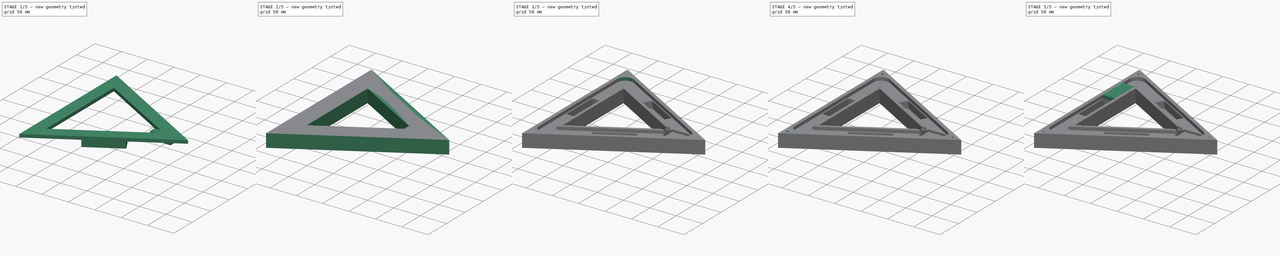
[diagram: build sequence overview — one tinted view per stage of 5, left to right]
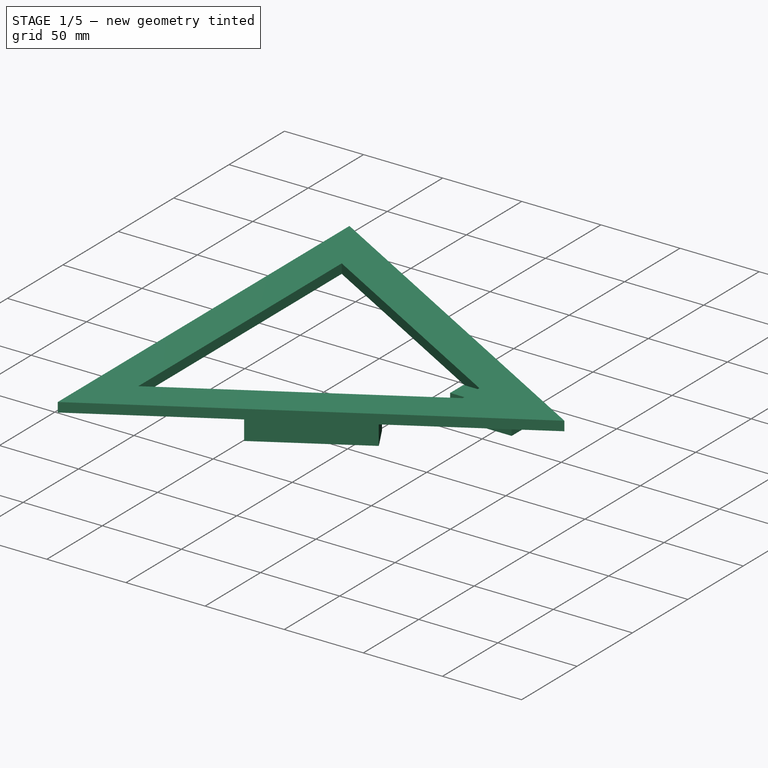
[diagram: stage 1 of 5 — iso view after this stage's code; geometry added in this stage tinted green]
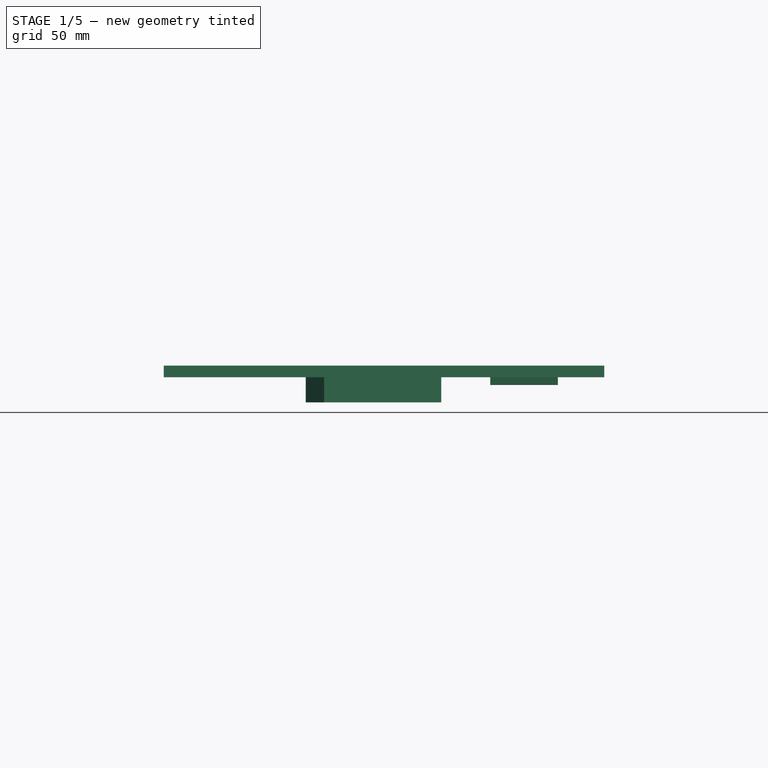
[diagram: stage 1 of 5 — front view after this stage's code; geometry added in this stage tinted green]
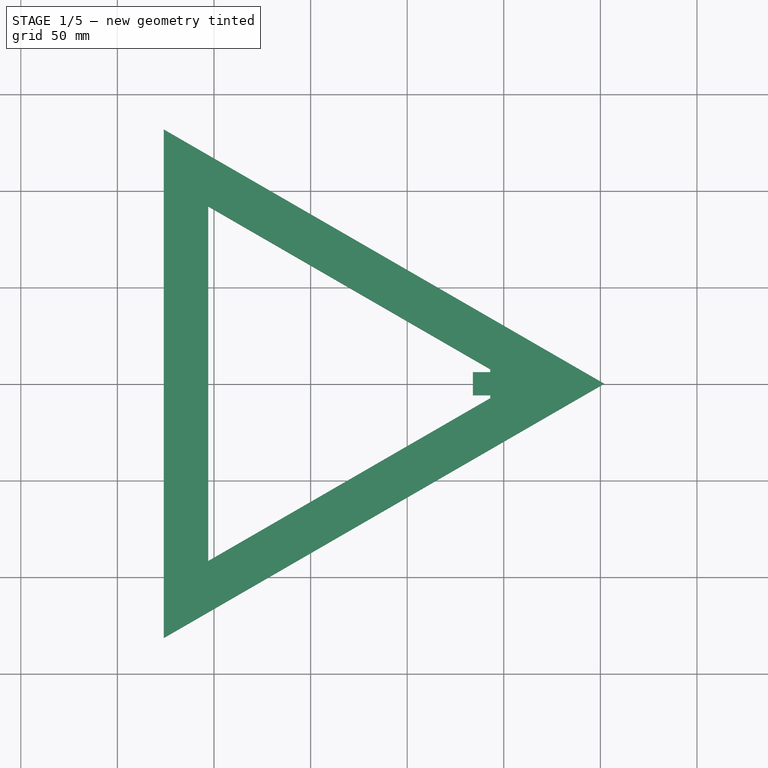
[diagram: stage 1 of 5 — top view after this stage's code; geometry added in this stage tinted green]
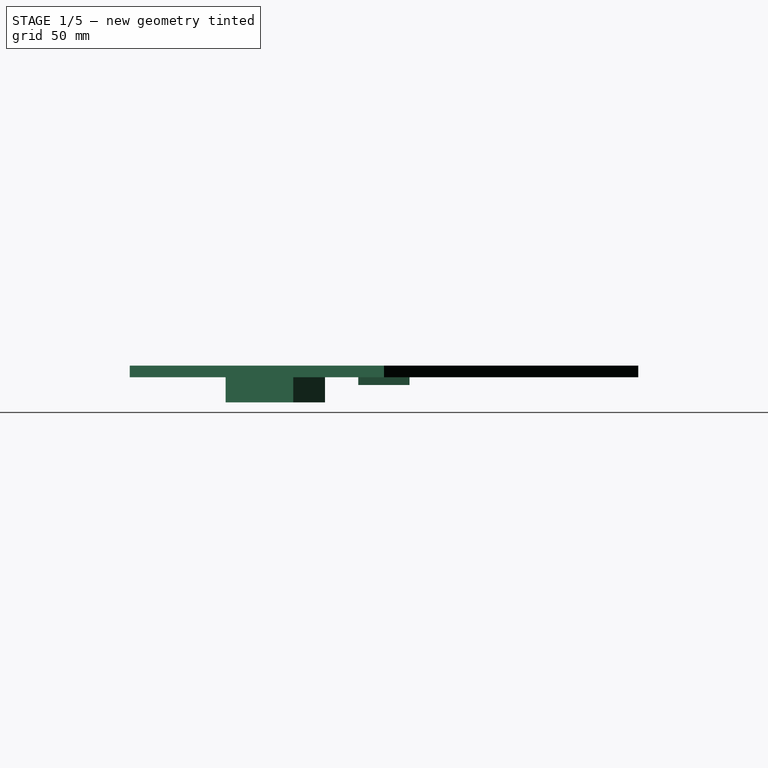
[diagram: stage 1 of 5 — right view after this stage's code; geometry added in this stage tinted green]
FCSTD DOCUMENT  (FreeCAD 0.17R13541 (Git))
Label: TechNicolor-Triangle-39-battery-D1-Mini-USB-BMS-Big-Filleted-Channel-And-USB-alt-Solid-Back-through-filleted-inner-corners-LED-Groove-Inside-Outside-Fit-Holes
License: All rights reserved
LicenseURL: http://en.wikipedia.org/wiki/All_rights_reserved
objects: Part::Cut×8, Part::Box×6, Sketcher::SketchObject×6, PartDesign::Pocket×5, PartDesign::PolarPattern×5, Part::Prism×4, Part::Fillet×1, PartDesign::FeatureBase×1, PartDesign::Body×1, App::Part×1
note: 42 computed .brp shape members not serialized (recipe doc carries the construction recipe); baked Part::Feature solids carry a one-line shape summary decoded from their .brp

FEATURE [Part::Box] Box002
  AttacherType = Attacher::AttachEngine3D
  Height = 19
  Length = 70
  Placement = pos=(7,-82,0) rot=(0,0,1;0.523599rad)
  Width = 19
FEATURE [Part::Box] Box003
  AttacherType = Attacher::AttachEngine3D
  Height = 10
  Length = 35
  Placement = pos=(93,-13.3,9) rot=(0,0,1;0rad)
  Width = 26.5
FEATURE [Part::Box] Box004
  AttacherType = Attacher::AttachEngine3D
  Height = 4
  Length = 10
  Placement = pos=(84,-6,15) rot=(0,0,1;0rad)
  Width = 12
FEATURE [Part::Prism] Prism002
  AttacherType = Attacher::AttachEngine3D
  Circumradius = 152
  Height = 6
  Placement = pos=(0,0,13) rot=(0,0,1;0rad)
  Polygon = 3
FEATURE [Part::Prism] Prism003
  AttacherType = Attacher::AttachEngine3D
  Circumradius = 106
  Height = 6
  Placement = pos=(0,0,13) rot=(0,0,1;0rad)
  Polygon = 3
FEATURE [Part::Cut] Cut006
  Base = -> Prism002
  Tool = -> Prism003
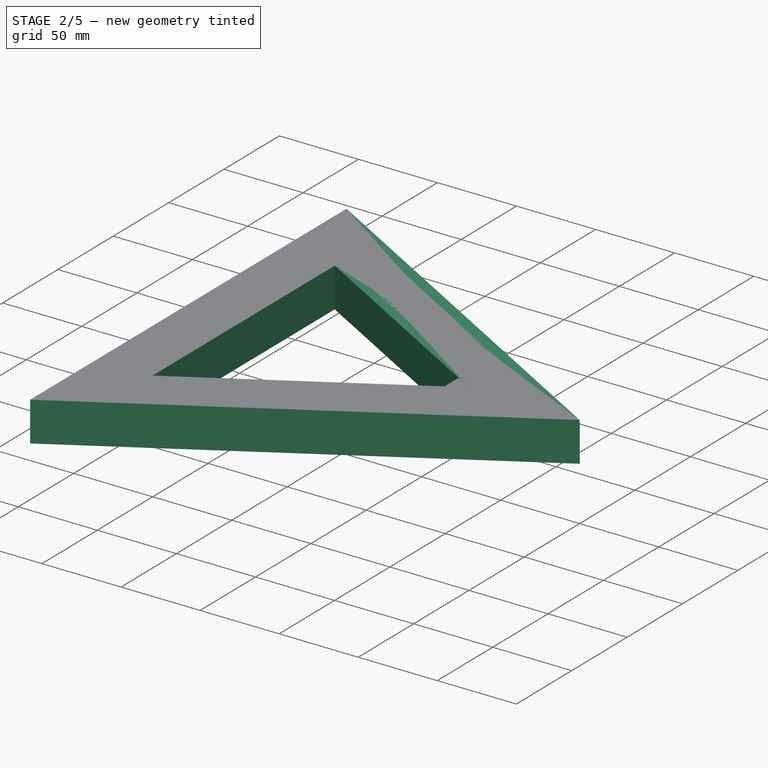
[diagram: stage 2 of 5 — iso view after this stage's code; geometry added in this stage tinted green]
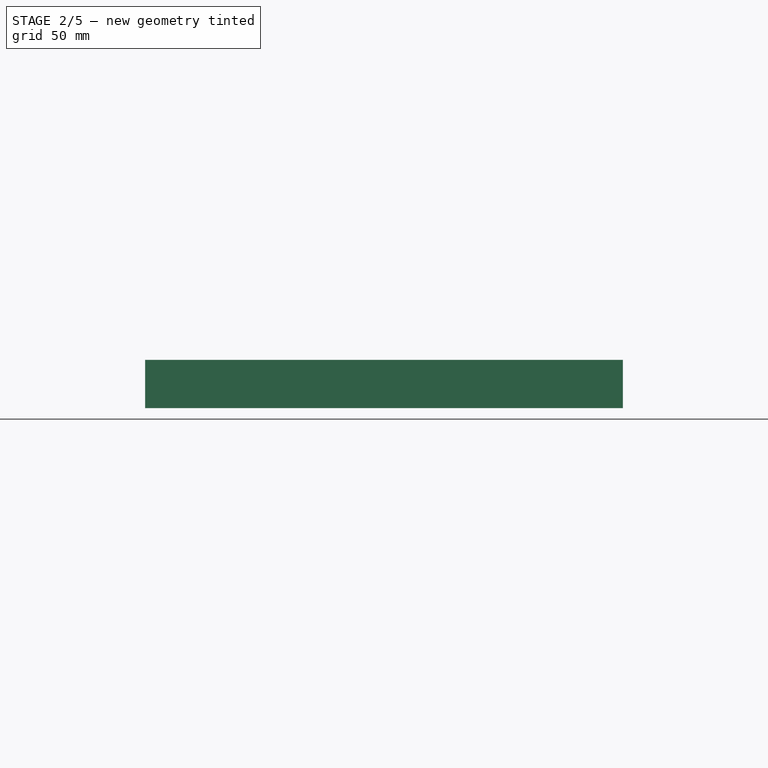
[diagram: stage 2 of 5 — front view after this stage's code; geometry added in this stage tinted green]
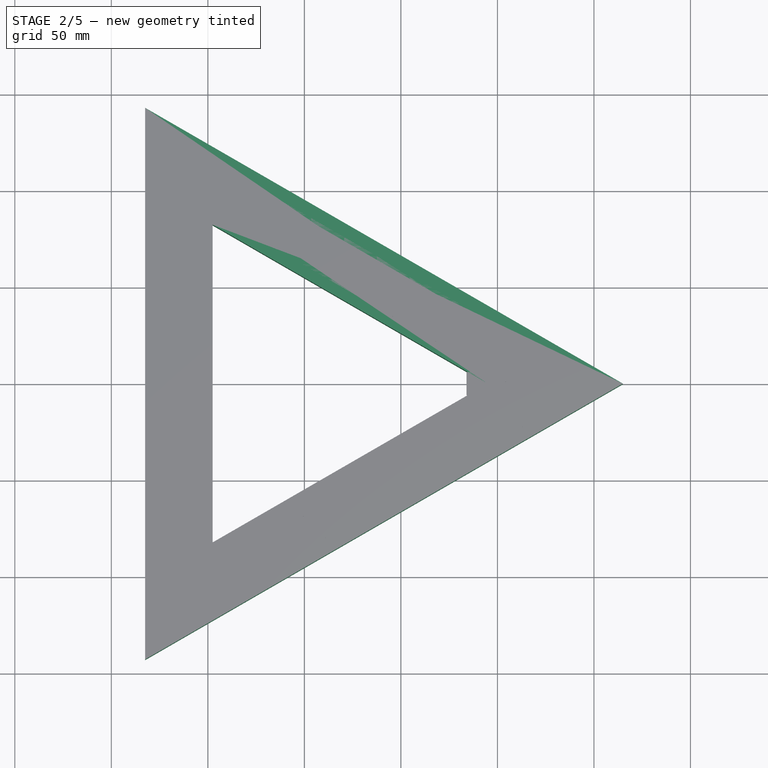
[diagram: stage 2 of 5 — top view after this stage's code; geometry added in this stage tinted green]
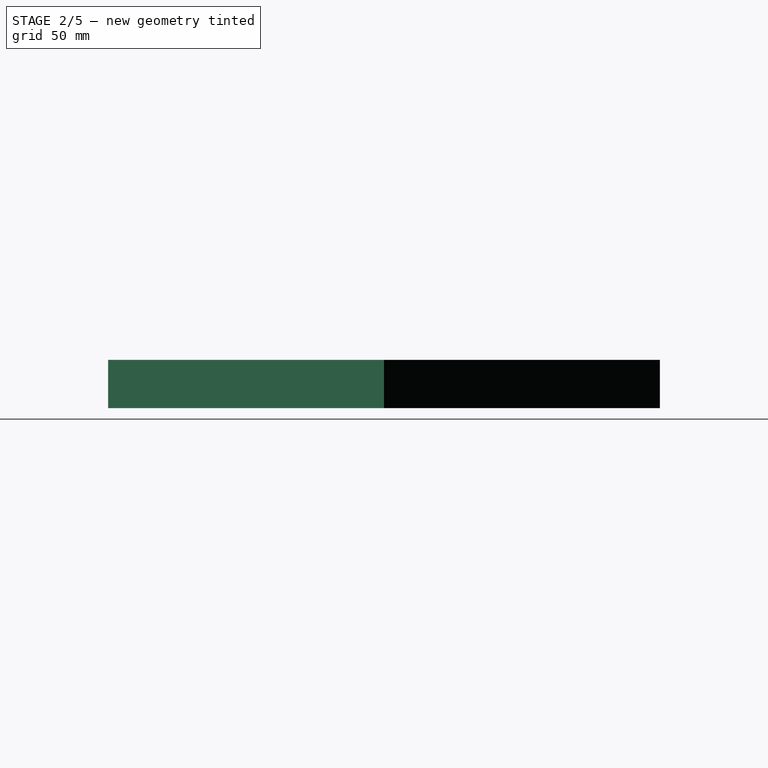
[diagram: stage 2 of 5 — right view after this stage's code; geometry added in this stage tinted green]
FEATURE [Part::Prism] Prism
  AttacherType = Attacher::AttachEngine3D
  Circumradius = 165
  Height = 25
  Placement = pos=(0,0,-6) rot=(0,0,1;0rad)
  Polygon = 3
FEATURE [Part::Prism] Prism001
  AttacherType = Attacher::AttachEngine3D
  Circumradius = 95
  Height = 25
  Placement = pos=(0,0,-6) rot=(0,0,1;0rad)
  Polygon = 3
FEATURE [Part::Cut] Cut
  Base = -> Prism
  Tool = -> Prism001
FEATURE [Part::Box] Box
  AttacherType = Attacher::AttachEngine3D
  Height = 19
  Length = 70
  Placement = pos=(-2,65,0) rot=(0,0,-1;0.523599rad)
  Width = 19
FEATURE [Part::Cut] Cut001
  Base = -> Cut
  Tool = -> Box
FEATURE [Part::Box] Box001
  AttacherType = Attacher::AttachEngine3D
  Height = 19
  Length = 70
  Placement = pos=(-55,-35,0) rot=(0,0,1;1.5708rad)
  Width = 19
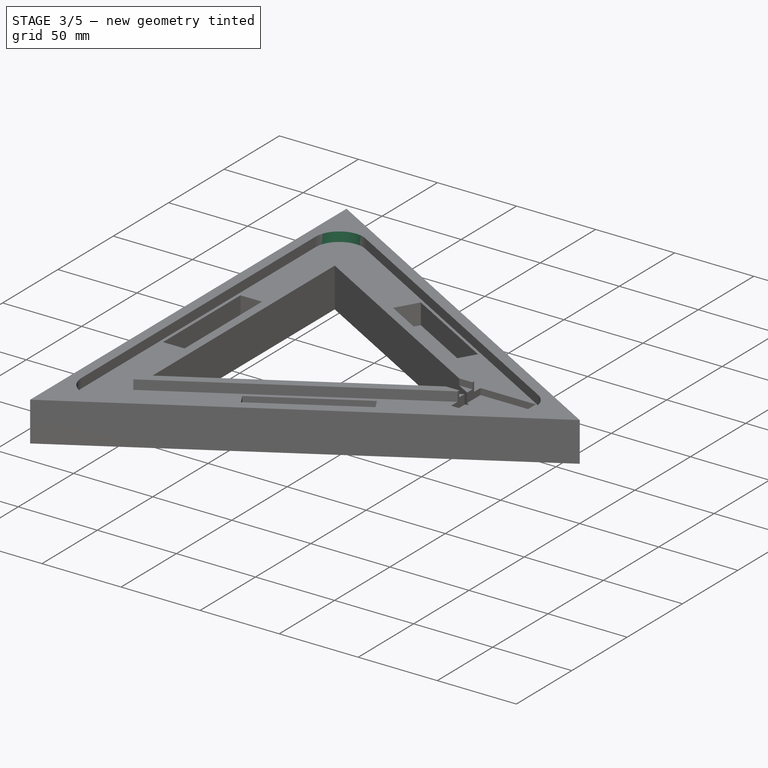
[diagram: stage 3 of 5 — iso view after this stage's code; geometry added in this stage tinted green]
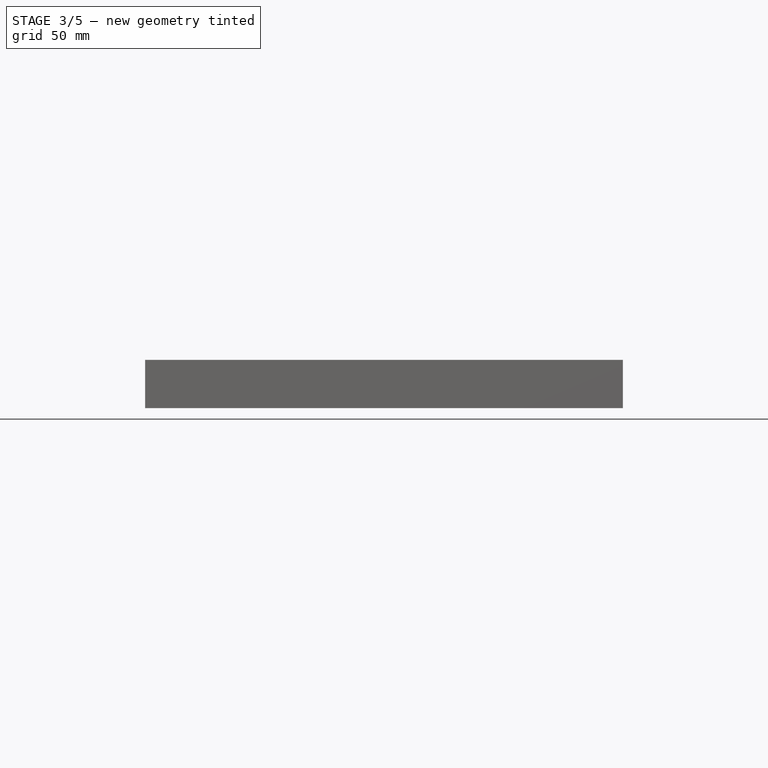
[diagram: stage 3 of 5 — front view after this stage's code; geometry added in this stage tinted green]
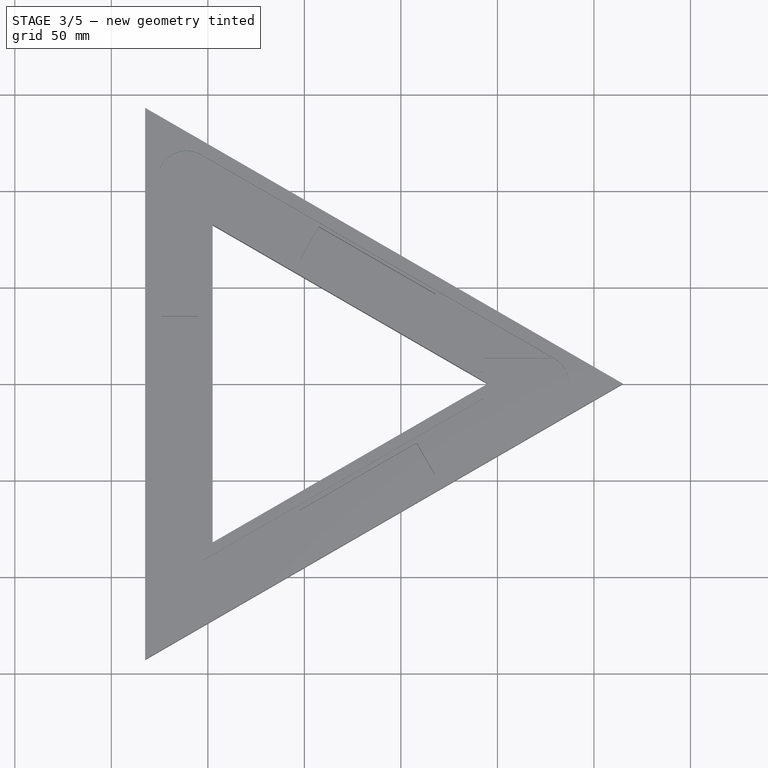
[diagram: stage 3 of 5 — top view after this stage's code; geometry added in this stage tinted green]
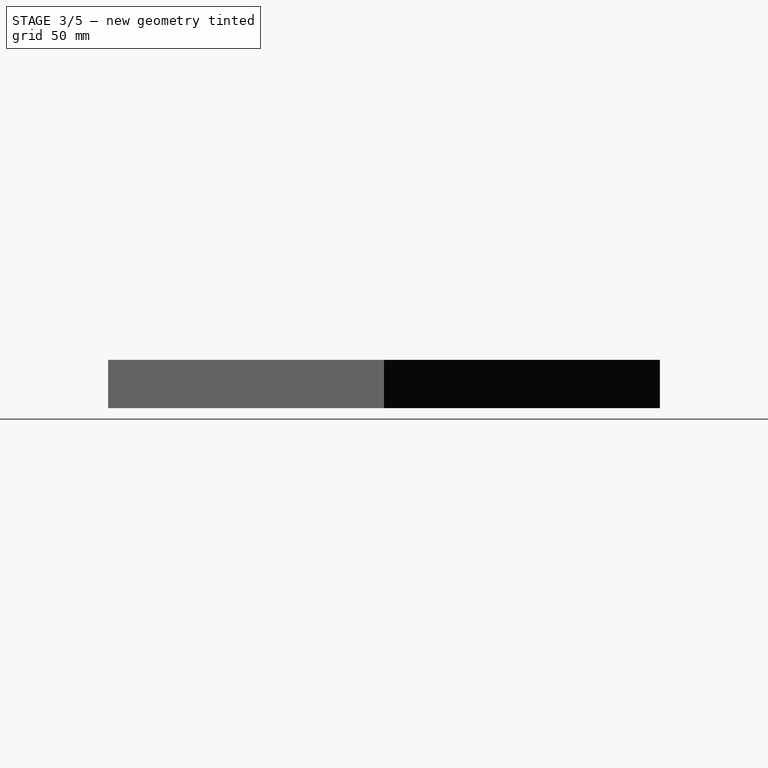
[diagram: stage 3 of 5 — right view after this stage's code; geometry added in this stage tinted green]
FEATURE [Part::Cut] Cut002
  Base = -> Cut001
  Tool = -> Box001
FEATURE [Part::Cut] Cut003
  Base = -> Cut002
  Tool = -> Box002
FEATURE [Part::Cut] Cut004
  Base = -> Cut003
  Tool = -> Box003
FEATURE [Part::Cut] Cut005
  Base = -> Cut004
  Tool = -> Box004
FEATURE [Part::Cut] Cut007
  Base = -> Cut005
  Tool = -> Cut006
FEATURE [Sketcher::SketchObject] Sketch
  MapMode = 5
  Placement = pos=(0,0,19) rot=(0,0,1;0rad)
  Support = -> [Cut]
  sketch-geometry (8):
    g0: LineSegment StartX=-74.7277 StartY=38.2242 StartZ=0 EndX=-55.7277 EndY=38.2242 EndZ=0
    g1: LineSegment StartX=-55.7277 StartY=38.2242 StartZ=0 EndX=-55.7277 EndY=-36.7758 EndZ=0
    g2: LineSegment StartX=-55.7277 StartY=-36.7758 StartZ=0 EndX=-74.7277 EndY=-36.7758 EndZ=0
    g3: LineSegment StartX=-74.7277 StartY=-36.7758 StartZ=0 EndX=-74.7277 EndY=38.2242 EndZ=0
    g4: LineSegment StartX=78.5324 StartY=-15.442 StartZ=0 EndX=3.53238 EndY=-58.1438 EndZ=0
    g5: LineSegment StartX=3.53238 StartY=-58.1438 StartZ=0 EndX=14.3502 EndY=-77.1438 EndZ=0
    g6: LineSegment StartX=14.3502 StartY=-77.1438 StartZ=0 EndX=89.3502 EndY=-34.442 EndZ=0
    g7: LineSegment StartX=89.3502 StartY=-34.442 StartZ=0 EndX=78.5324 EndY=-15.442 EndZ=0
  constraints (22):
    c: Coincident(g0,g1)
    c: Coincident(g1,g2)
    c: Coincident(g2,g3)
    c: Coincident(g3,g0)
    c: Horizontal(g0)
    c: Vertical(g1)
    c: Parallel(g1,g3)
    c: Parallel(g0,g2)
    c: Equal(g0,g2)
    c: Equal(g1,g3)
    c: DistanceY(g3) = 75
    c: DistanceX(g2) = -19
    c: Coincident(g4,g5)
    c: Coincident(g5,g6)
    c: Coincident(g6,g7)
    c: Coincident(g7,g4)
    c: DistanceX(g4) = -75
    c: DistanceX(g6) = 75
    c: DistanceY(g7) = 19
    c: DistanceY(g5) = -19
    c: Angle(g4,g7) = 1.5708
    c: Angle(g6,g5) = 1.5708
FEATURE [Part::Fillet] Fillet
  Base = -> Cut007
  Edges = 3 edges r=15: [Edge30,Edge31,Edge33]
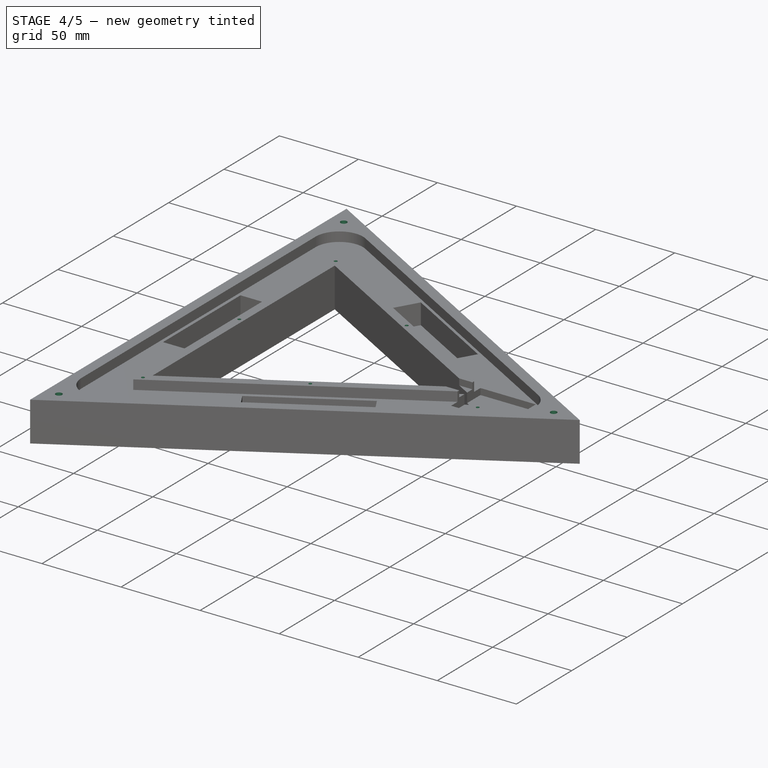
[diagram: stage 4 of 5 — iso view after this stage's code; geometry added in this stage tinted green]
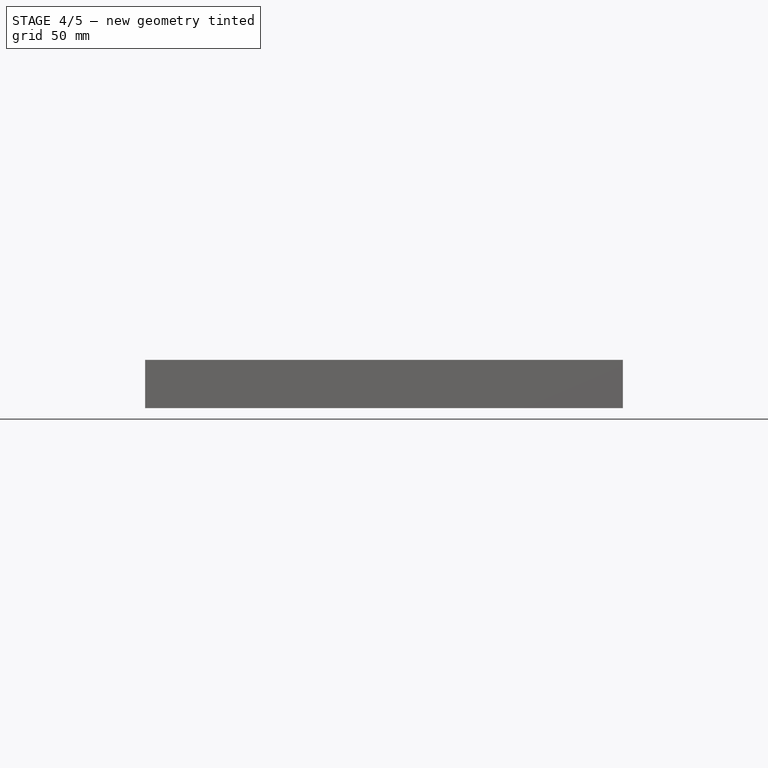
[diagram: stage 4 of 5 — front view after this stage's code; geometry added in this stage tinted green]
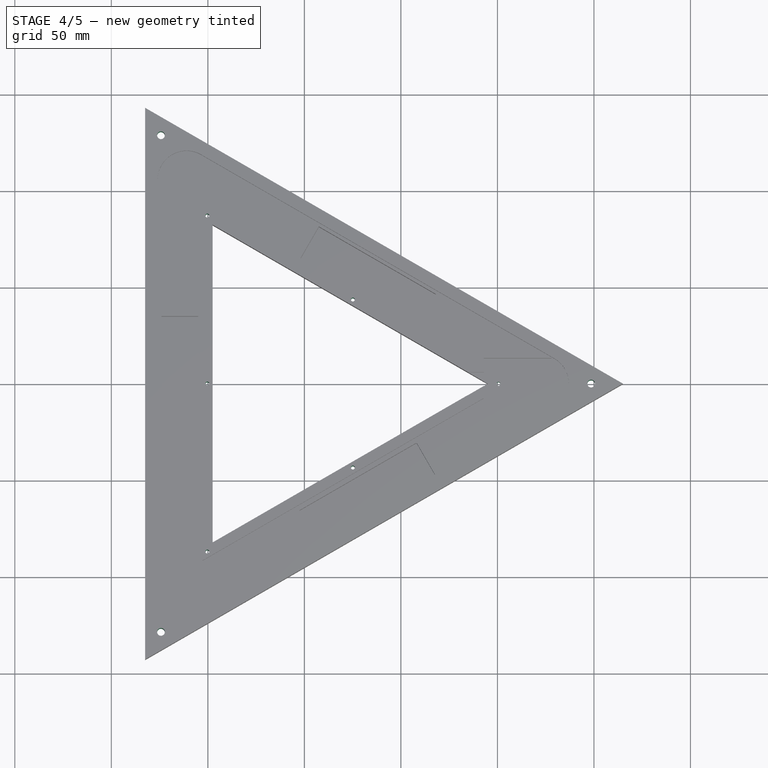
[diagram: stage 4 of 5 — top view after this stage's code; geometry added in this stage tinted green]
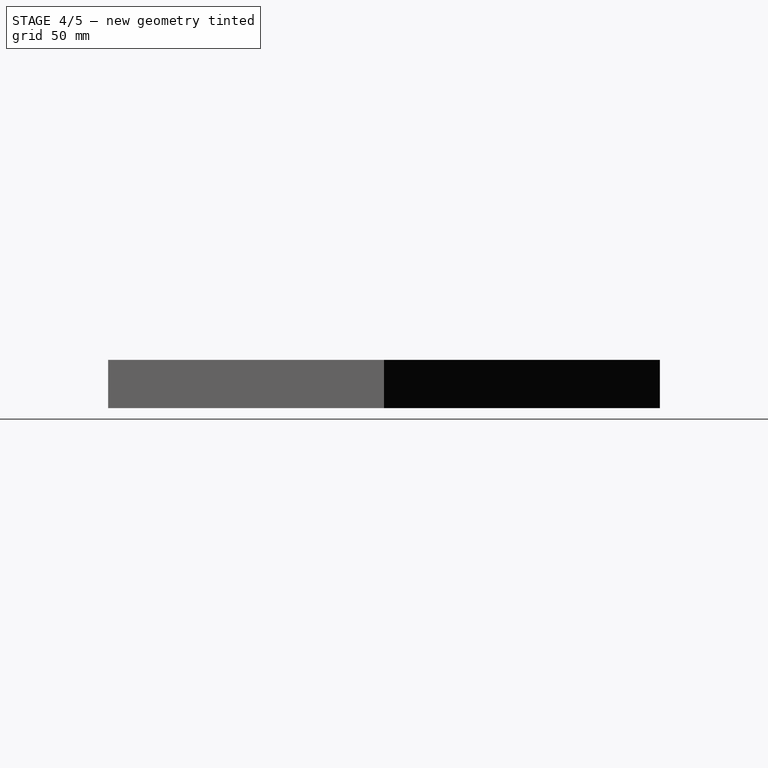
[diagram: stage 4 of 5 — right view after this stage's code; geometry added in this stage tinted green]
FEATURE [PartDesign::FeatureBase] BaseFeature
  BaseFeature = -> Fillet
FEATURE [Sketcher::SketchObject] Sketch001
  ExternalGeometry = -> [BaseFeature]
  MapMode = 5
  Placement = pos=(0,0,19) rot=(0,0,1;0rad)
  Support = -> [BaseFeature]
  sketch-geometry (2):
    g0: Circle CenterX=148.55 CenterY=0 CenterZ=0 NormalX=0 NormalY=0 NormalZ=1 AngleXU=0 Radius=2
    g1: GeomPoint X=141.355 Y=-0.209727 Z=0
  constraints (3):
    c: PointOnObject(g0,g-1)
    c: DistanceX(g0) = 148.55
    c: Radius(g0) = 2
FEATURE [PartDesign::Pocket] Pocket
  BaseFeature = -> BaseFeature
  Length = 5
  Length2 = 100
  Profile = -> Sketch001
  Type = 1
FEATURE [PartDesign::PolarPattern] PolarPattern
  Angle = 360
  Axis = -> Sketch001 [N_Axis]
  BaseFeature = -> Pocket
  Occurrences = 3
  Originals = -> [Pocket]
FEATURE [Sketcher::SketchObject] Sketch002  label="Inner-Set-Holes"
  ExternalGeometry = -> [PolarPattern]
  MapMode = 5
  Placement = pos=(0,0,19) rot=(0,0,1;0rad)
  Support = -> [PolarPattern]
  sketch-geometry (9):
    g0: Circle CenterX=-50.25 CenterY=0 CenterZ=0 NormalX=0 NormalY=0 NormalZ=1 AngleXU=0 Radius=1
    g1: GeomPoint X=-49.25 Y=0 Z=0
    g2: GeomPoint X=-47.5 Y=0 Z=0
    g3: GeomPoint X=-47.5 Y=0 Z=0
    g4: GeomPoint X=-47.5 Y=0 Z=0
    g5: GeomPoint X=-53 Y=0 Z=0
    g6: GeomPoint X=-53 Y=0 Z=0
    g7: Circle CenterX=-50.25 CenterY=87.0356 CenterZ=0 NormalX=0 NormalY=0 NormalZ=1 AngleXU=0 Radius=1
    g8: GeomPoint X=-51.2482 Y=86.9759 Z=0
  constraints (15):
    c: PointOnObject(g0,g-1)
    c: PointOnObject(g1,g0)
    c: Distance(g0,g1) = 1  'ToothPickHole-Centre'
    c: PointOnObject(g2,g-3)
    c: Coincident(g3,g2)
    c: PointOnObject(g4,g-1)
    c: Coincident(g3,g4)
    c: PointOnObject(g5,g-4)
    c: PointOnObject(g6,g-1)
    c: Coincident(g5,g6)
    c: Symmetric(g5,g2,g0)
    c: PointOnObject(g1,g-1)
    c: Symmetric(g-4,g-3,g7)
    c: PointOnObject(g8,g7)
    c: Distance(g7,g8) = 1
FEATURE [Sketcher::SketchObject] Sketch003  label="LED-Channel"
  ExternalGeometry = -> [PolarPattern]
  MapMode = 5
  Placement = pos=(0,0,-6) rot=(1,0,0;3.14159rad)
  Support = -> [PolarPattern]
  sketch-geometry (9):
    g0: LineSegment StartX=-70.5 StartY=122.11 StartZ=0 EndX=141 EndY=0 EndZ=0
    g1: LineSegment StartX=141 StartY=0 StartZ=0 EndX=-70.5 EndY=-122.11 EndZ=0
    g2: LineSegment StartX=-70.5 StartY=-122.11 StartZ=0 EndX=-70.5 EndY=122.11 EndZ=0
    g3: LineSegment StartX=-59.5 StartY=-103.057 StartZ=0 EndX=-59.5 EndY=103.057 EndZ=0
    g4: LineSegment StartX=-59.5 StartY=103.057 StartZ=0 EndX=119 EndY=0 EndZ=0
    g5: LineSegment StartX=119 StartY=0 StartZ=0 EndX=-59.5 EndY=-103.057 EndZ=0
    g6: GeomPoint X=29.75 Y=-51.5285 Z=0
    g7: GeomPoint X=-59.5 Y=2e-12 Z=0
    g8: GeomPoint X=29.75 Y=51.5285 Z=0
  constraints (25):
    c: PointOnObject(g0,g-1)
    c: Coincident(g0,g1)
    c: Coincident(g1,g2)
    c: Coincident(g2,g0)
    c: Vertical(g2)
    c: Vertical(g3)
    c: Coincident(g3,g4)
    c: PointOnObject(g4,g-1)
    c: Coincident(g4,g5)
    c: Coincident(g5,g3)
    c: Distance(g3,g2) = 11
    c: Distance(g4,g1) = 11
    c: Distance(g3,g0) = 11
    c: Parallel(g5,g1)
    c: Parallel(g0,g4)
    c: Parallel(g-6,g4)
    c: PointOnObject(g6,g5)
    c: PointOnObject(g7,g3)
    c: PointOnObject(g8,g4)
    c: Symmetric(g3,g4,g8)
    c: Symmetric(g3,g3,g7)
    c: Symmetric(g3,g4,g6)
    c: Distance(g8,g-6) = 12
    c: Distance(g7,g-5) = 12
    c: Distance(g6,g-7) = 12
FEATURE [PartDesign::Pocket] Pocket001
  BaseFeature = -> PolarPattern
  Length = 3
  Length2 = 100
  Profile = -> Sketch003
  Type = 0
FEATURE [PartDesign::Pocket] Pocket002
  BaseFeature = -> Pocket001
  Length = 5
  Length2 = 100
  Profile = -> Sketch002
  Type = 1
FEATURE [PartDesign::PolarPattern] PolarPattern001
  Angle = 360
  Axis = -> Sketch002 [N_Axis]
  BaseFeature = -> Pocket002
  Occurrences = 3
  Originals = -> [Pocket002]
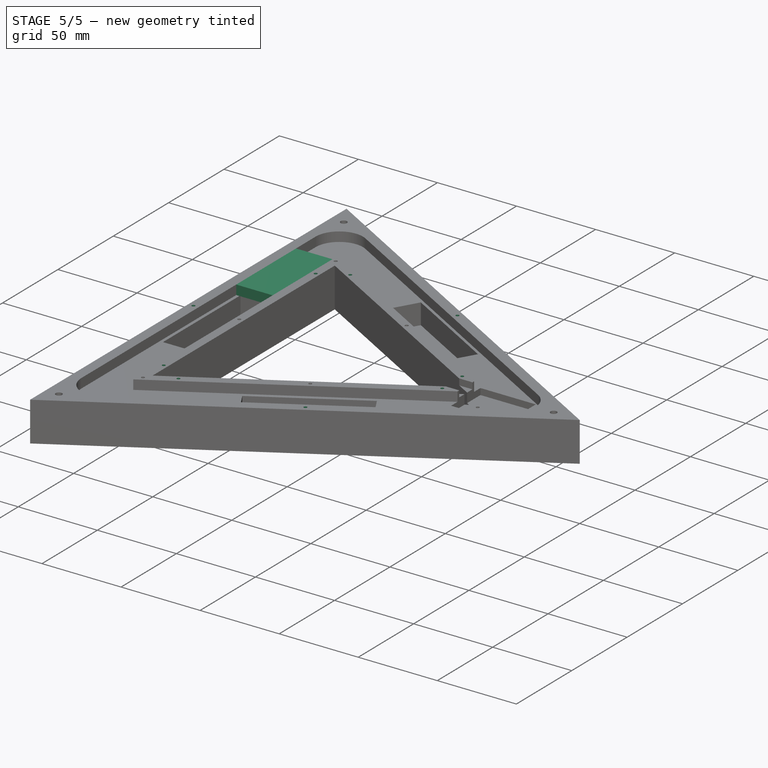
[diagram: stage 5 of 5 — iso view after this stage's code; geometry added in this stage tinted green]
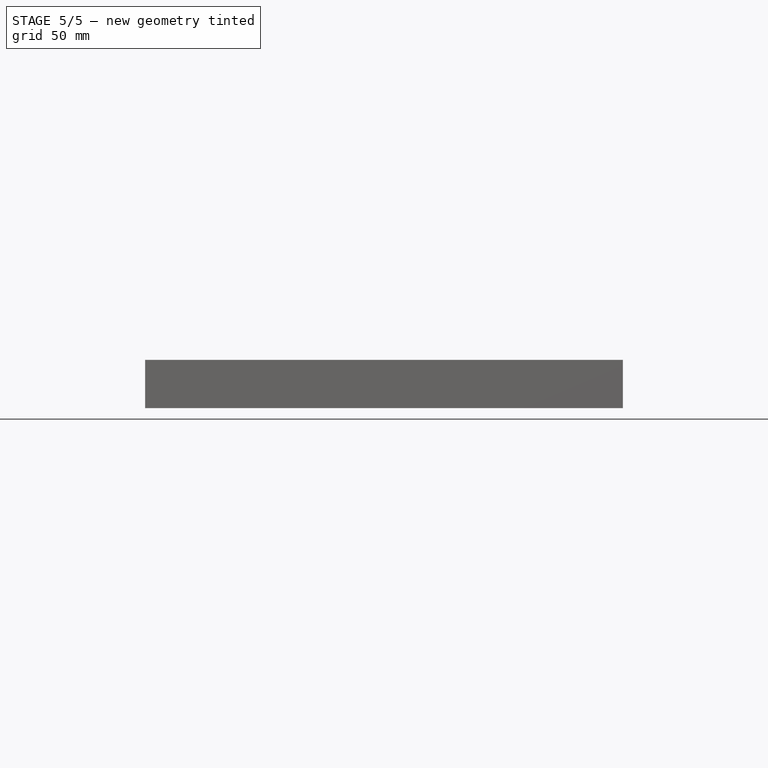
[diagram: stage 5 of 5 — front view after this stage's code; geometry added in this stage tinted green]
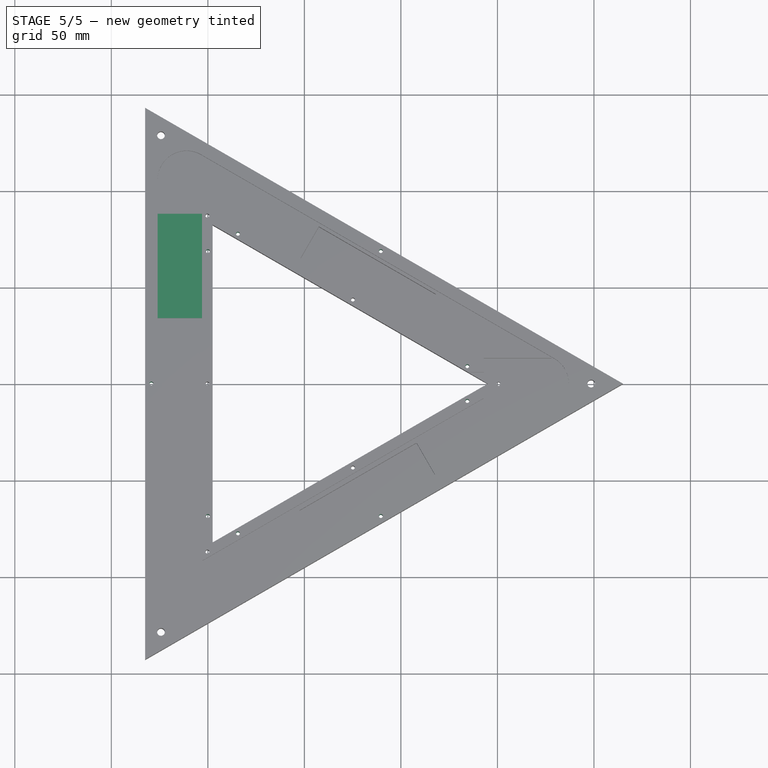
[diagram: stage 5 of 5 — top view after this stage's code; geometry added in this stage tinted green]
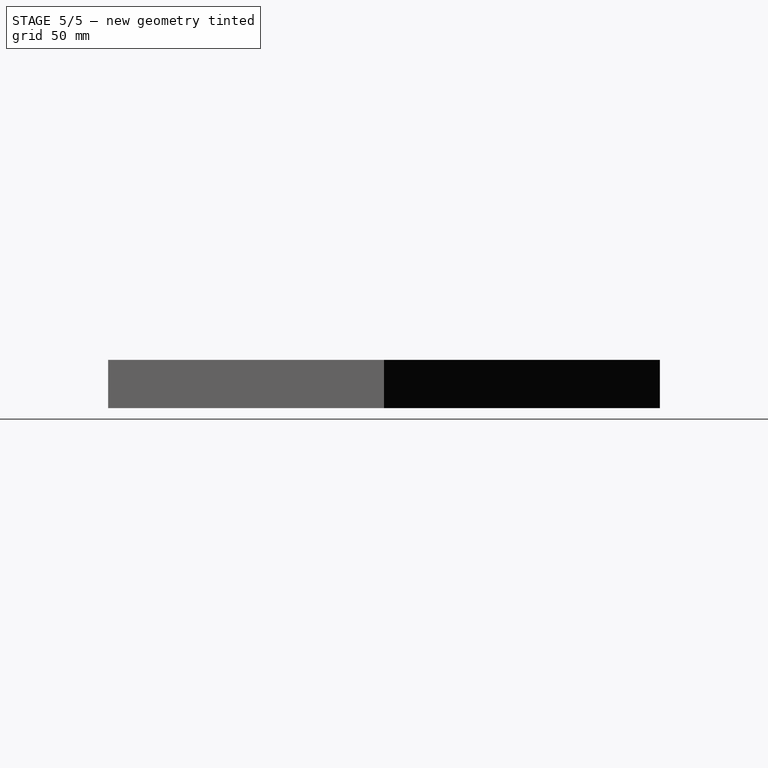
[diagram: stage 5 of 5 — right view after this stage's code; geometry added in this stage tinted green]
FEATURE [Part::Box] Box005
  AttacherType = Attacher::AttachEngine3D
  Height = 6
  Length = 23
  Placement = pos=(-76,34,13) rot=(0,0,1;0rad)
  Width = 54
FEATURE [Sketcher::SketchObject] Sketch004
  ExternalGeometry = -> [PolarPattern001]
  MapMode = 5
  Placement = pos=(0,0,19) rot=(0,0,1;0rad)
  Support = -> [PolarPattern001]
  sketch-geometry (4):
    g0: Circle CenterX=84.4115 CenterY=9 CenterZ=0 NormalX=0 NormalY=0 NormalZ=1 AngleXU=0 Radius=1
    g1: GeomPoint X=83.629 Y=9.62257 Z=0
    g2: Circle CenterX=84.4115 CenterY=-9 CenterZ=0 NormalX=0 NormalY=0 NormalZ=1 AngleXU=0 Radius=1
    g3: GeomPoint X=84.6606 Y=-9.9685 Z=0
  constraints (8):
    c: PointOnObject(g1,g0)
    c: Distance(g0,g1) = 1
    c: Distance(g0,g-4) = 2.5
    c: Distance(g0,g-5) = 3
    c: PointOnObject(g3,g2)
    c: Distance(g2,g-7) = 2.5
    c: Distance(g3,g2) = 1
    c: Distance(g2,g-6) = 3
FEATURE [PartDesign::Pocket] Pocket003
  BaseFeature = -> PolarPattern001
  Length = 5
  Length2 = 100
  Profile = -> Sketch004
  Type = 1
FEATURE [PartDesign::PolarPattern] PolarPattern002
  Angle = 360
  Axis = -> Sketch004 [N_Axis]
  BaseFeature = -> Pocket003
  Occurrences = 3
  Originals = -> [Pocket003]
FEATURE [PartDesign::PolarPattern] PolarPattern003
  Angle = 360
  Axis = -> Sketch002 [N_Axis]
  BaseFeature = -> PolarPattern002
  Occurrences = 3
  Originals = -> [Pocket002]
FEATURE [Sketcher::SketchObject] Sketch005  label="OutSide-Centre-Set-Holes"
  ExternalGeometry = -> [PolarPattern003]
  MapMode = 5
  Placement = pos=(0,0,19) rot=(0,0,1;0rad)
  Support = -> [PolarPattern003]
  sketch-geometry (4):
    g0: Circle CenterX=-79.25 CenterY=0 CenterZ=0 NormalX=0 NormalY=0 NormalZ=1 AngleXU=0 Radius=1
    g1: GeomPoint X=-79.019 Y=0.97295 Z=0
    g2: GeomPoint X=-82.5 Y=0 Z=0
    g3: GeomPoint X=-76 Y=0 Z=0
  constraints (8):
    c: PointOnObject(g1,g0)
    c: PointOnObject(g0,g-1)
    c: PointOnObject(g2,g-4)
    c: PointOnObject(g3,g-3)
    c: PointOnObject(g3,g-1)
    c: PointOnObject(g2,g-1)
    c: Distance(g1,g0) = 1
    c: Symmetric(g2,g3,g0)
FEATURE [PartDesign::Pocket] Pocket004  label="OutSide-Centre-Set-Hole-Pocket"
  BaseFeature = -> PolarPattern003
  Length = 5
  Length2 = 100
  Profile = -> Sketch005
  Type = 1
FEATURE [PartDesign::PolarPattern] PolarPattern004  label="OutSide-Centre-Set-Hole-PolarPattern"
  Angle = 360
  Axis = -> Sketch005 [N_Axis]
  BaseFeature = -> Pocket004
  Occurrences = 3
  Originals = -> [Pocket004]
FEATURE [PartDesign::Body] Body
  BaseFeature = -> Fillet
  Group = -> [BaseFeature,Sketch001,Pocket,PolarPattern,Sketch002,Sketch003,Pocket001,Pocket002,PolarPattern001,Sketch004,Pocket003,PolarPattern002,PolarPattern003,Sketch005,Pocket004,PolarPattern004]
  Origin = -> Origin
  Tip = -> PolarPattern004
FEATURE [App::Part] Part
  Group = -> [Cut,Sketch,Box004,Cut003,Box003,Box,Cut002,Prism,Cut005,Prism003,Prism002,Cut001,Box001,Box002,Cut006,Cut007,Prism001,Cut004,Fillet,Body]
  License = CC BY 3.0
  LicenseURL = http://creativecommons.org/licenses/by/3.0/
  Origin = -> Origin001
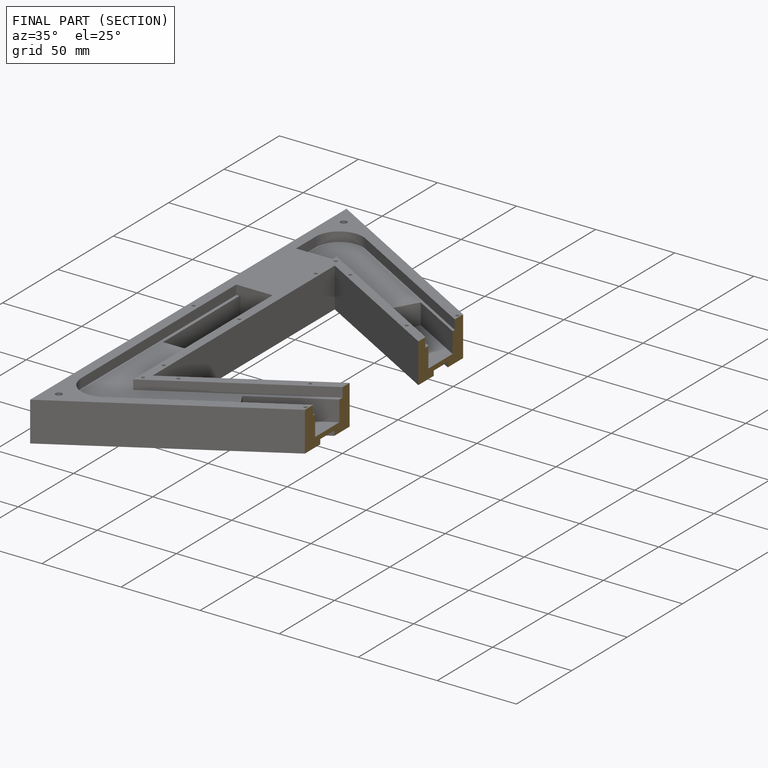
[diagram: finished part — half-section view (interior)]
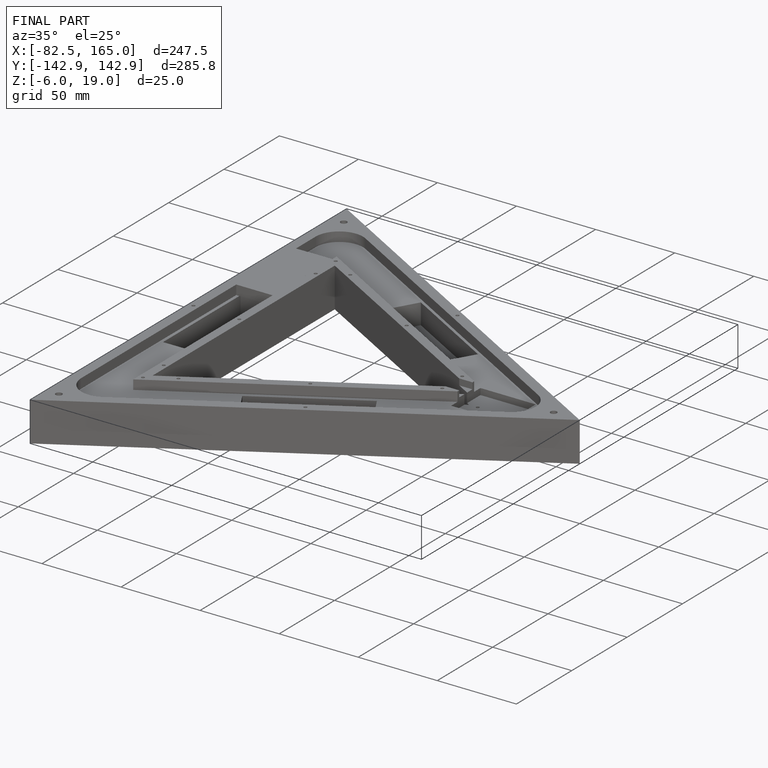
[diagram: finished part — iso view with bounding-box wireframe]
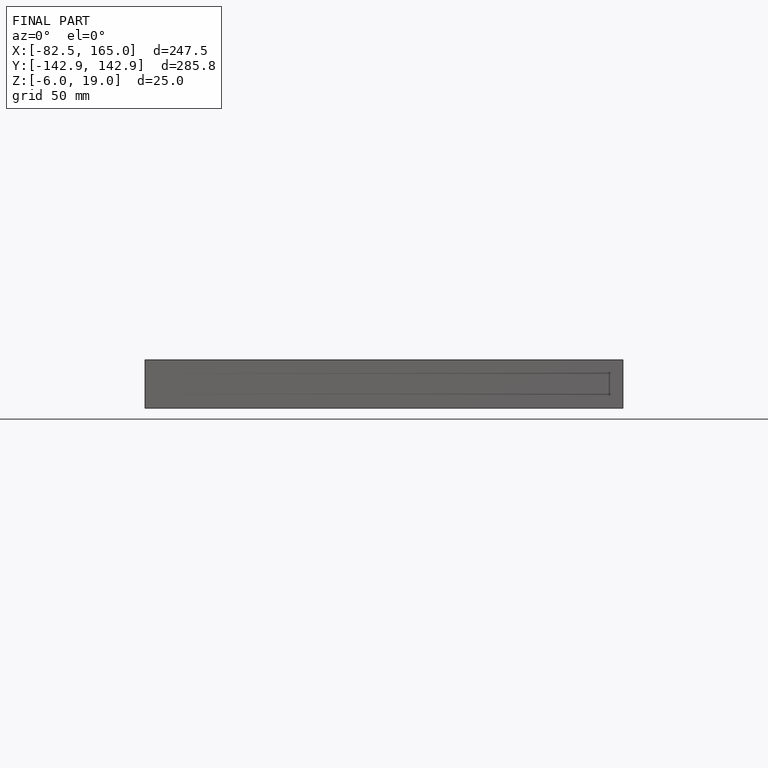
[diagram: finished part — front view with bounding-box wireframe]
